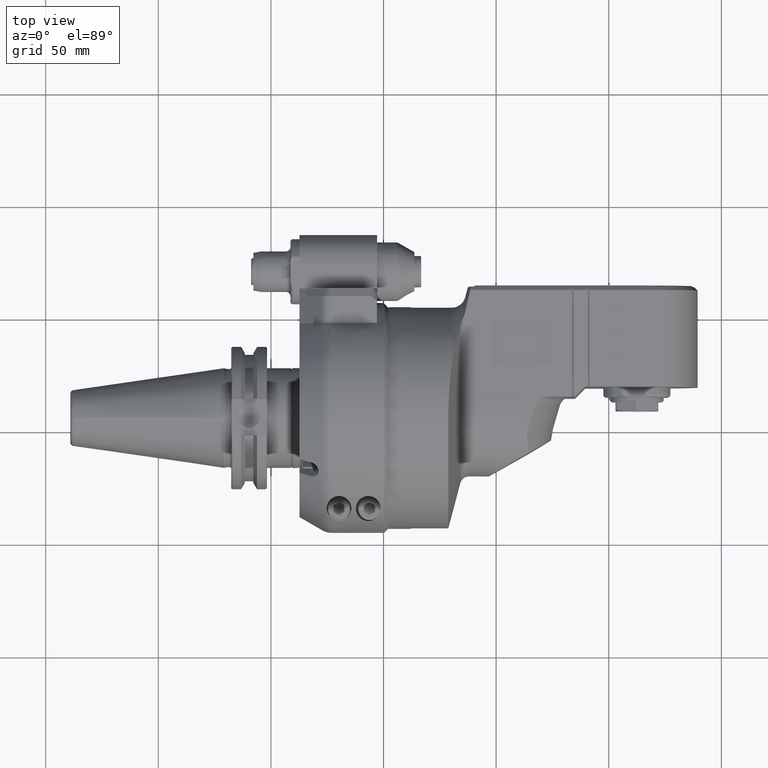
[diagram: clean part render]
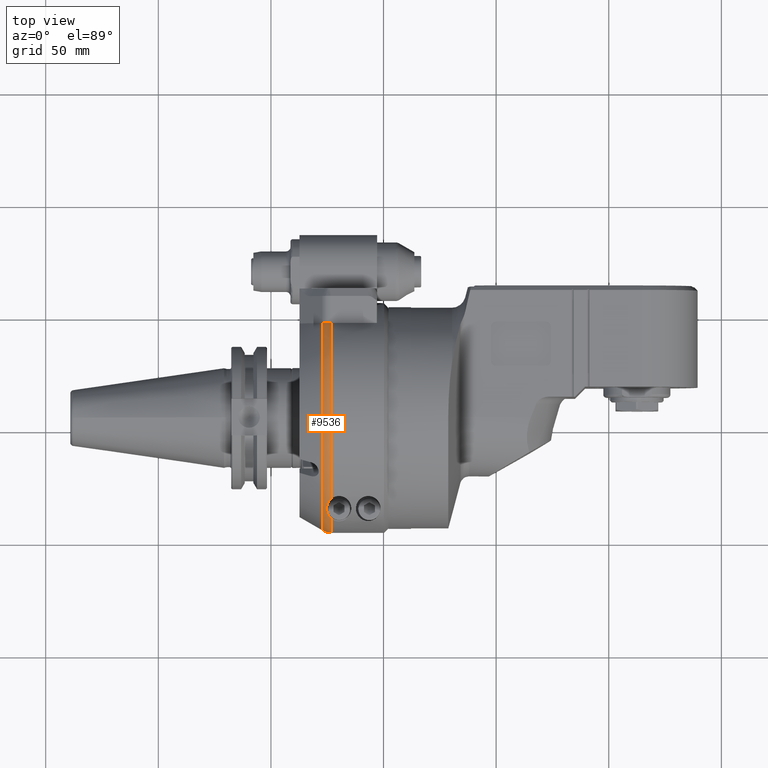
[diagram: same view with one face highlighted and labeled with its STEP entity id]
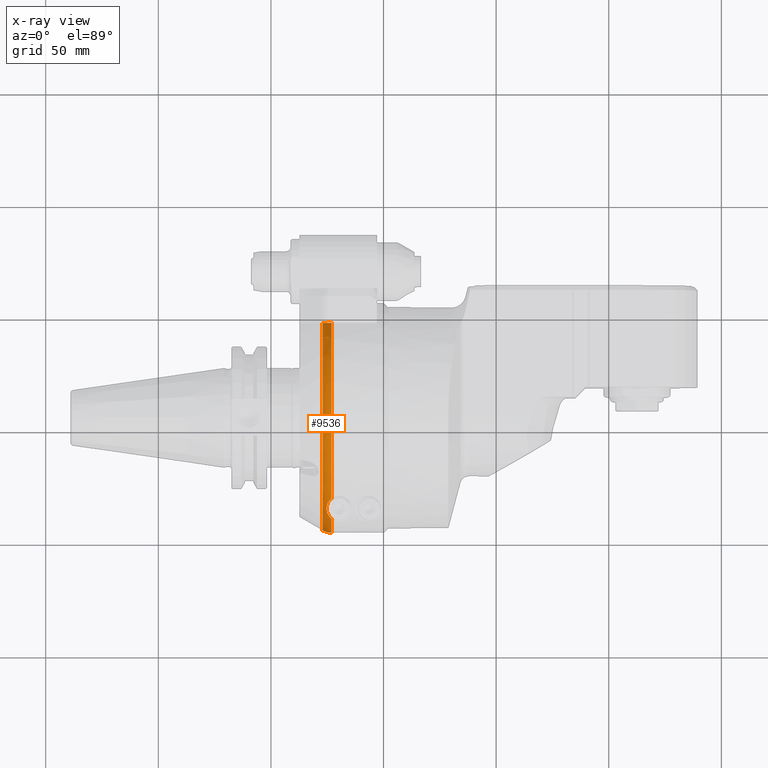
[diagram: x-ray of the same camera — body ghosted, the highlighted face saturated]
A machine part, top view. The second image highlights one B-rep face of the part: STEP entity #9536.
The next image is the same camera in x-ray: the body ghosted, the highlighted face saturated — about 0% of this face is hidden behind the body in this view.
In plain terms, the highlighted toroidal blend (fillet) surface has major radius 43 mm and minor (blend) radius 8 mm.
Its self-contained STEP definition (entity closure, byte-faithful):
#85=B_SPLINE_CURVE_WITH_KNOTS('',3,(#15429,#15430,#15431,#15432,#15433,
#15434,#15435,#15436,#15437,#15438),.UNSPECIFIED.,.F.,.F.,(4,2,2,2,4),(-9.68559804021147,
-9.63577634006454,-9.4843525606202,-9.37005770955715,-9.2557628584941),
 .UNSPECIFIED.);
#101=B_SPLINE_CURVE_WITH_KNOTS('',3,(#15768,#15769,#15770,#15771,#15772,
#15773,#15774,#15775),.UNSPECIFIED.,.F.,.F.,(4,2,2,4),(4.34441023881693,
4.44441523838835,4.59248867498487,4.74056211158139),.UNSPECIFIED.);
#104=B_SPLINE_CURVE_WITH_KNOTS('',3,(#15807,#15808,#15809,#15810,#15811,
#15812,#15813,#15814,#15815,#15816,#15817,#15818,#15819,#15820,#15821,#15822),
 .UNSPECIFIED.,.F.,.F.,(4,3,3,3,3,4),(-9.34472443709622,-9.15576581563647,
-8.53592281537659,-8.19749167718061,-7.9196061650134,-7.85473194545393),
 .UNSPECIFIED.);
#171=TOROIDAL_SURFACE('',#10600,43.,8.);
#711=CIRCLE('',#10554,51.);
#712=CIRCLE('',#10555,51.);
#733=CIRCLE('',#10597,49.92820323028);
#1482=FACE_OUTER_BOUND('',#2124,.T.);
#2124=EDGE_LOOP('',(#7413,#7414,#7415,#7416,#7417,#7418));
#4232=VERTEX_POINT('',#15394);
#4242=VERTEX_POINT('',#15425);
#4247=VERTEX_POINT('',#15449);
#4249=VERTEX_POINT('',#15458);
#4250=VERTEX_POINT('',#15485);
#4292=VERTEX_POINT('',#15756);
#5330=EDGE_CURVE('',#4242,#4232,#85,.T.);
#5336=EDGE_CURVE('',#4247,#4232,#711,.T.);
#5339=EDGE_CURVE('',#4250,#4249,#712,.T.);
#5403=EDGE_CURVE('',#4292,#4250,#101,.T.);
#5406=EDGE_CURVE('',#4242,#4292,#733,.T.);
#5411=EDGE_CURVE('',#4249,#4247,#104,.T.);
#7413=ORIENTED_EDGE('',*,*,#5406,.T.);
#7414=ORIENTED_EDGE('',*,*,#5403,.T.);
#7415=ORIENTED_EDGE('',*,*,#5339,.T.);
#7416=ORIENTED_EDGE('',*,*,#5411,.T.);
#7417=ORIENTED_EDGE('',*,*,#5336,.T.);
#7418=ORIENTED_EDGE('',*,*,#5330,.F.);
#9536=ADVANCED_FACE('',(#1482),#171,.T.);
#10554=AXIS2_PLACEMENT_3D('',#15450,#12469,#12470);
#10555=AXIS2_PLACEMENT_3D('',#15486,#12471,#12472);
#10597=AXIS2_PLACEMENT_3D('',#15781,#12585,#12586);
#10600=AXIS2_PLACEMENT_3D('',#15806,#12591,#12592);
#12469=DIRECTION('center_axis',(-1.,0.,0.));
#12470=DIRECTION('ref_axis',(0.,-0.711205879844998,0.702983781088798));
#12471=DIRECTION('center_axis',(-1.,0.,0.));
#12472=DIRECTION('ref_axis',(0.,-0.999567380468613,0.0294117647058804));
#12585=DIRECTION('center_axis',(1.,0.,0.));
#12586=DIRECTION('ref_axis',(0.,0.836200730225418,0.548423503116412));
#12591=DIRECTION('center_axis',(1.,0.,0.));
#12592=DIRECTION('ref_axis',(0.,-1.,0.));
#15394=CARTESIAN_POINT('',(-37.23205080757,41.75,29.29057015492));
#15425=CARTESIAN_POINT('',(-41.23205080757,41.75,27.38180011986));
#15429=CARTESIAN_POINT('Ctrl Pts',(-41.2320508075675,41.75,27.3818001198576));
#15430=CARTESIAN_POINT('Ctrl Pts',(-41.1084978721799,41.75,27.5118698927609));
#15431=CARTESIAN_POINT('Ctrl Pts',(-40.9796012581369,41.75,27.63883358715));
#15432=CARTESIAN_POINT('Ctrl Pts',(-40.4412749376929,41.75,28.1311886381695));
#15433=CARTESIAN_POINT('Ctrl Pts',(-39.9932266664163,41.75,28.4521983127449));
#15434=CARTESIAN_POINT('Ctrl Pts',(-39.2119237728328,41.75,28.8694287521605));
#15435=CARTESIAN_POINT('Ctrl Pts',(-38.8258618631201,41.75,29.0288082766981));
#15436=CARTESIAN_POINT('Ctrl Pts',(-38.0264941442551,41.75,29.2396724058848));
#15437=CARTESIAN_POINT('Ctrl Pts',(-37.6130336444468,41.75,29.290570154915));
#15438=CARTESIAN_POINT('Ctrl Pts',(-37.23205080757,41.75,29.290570154915));
#15449=CARTESIAN_POINT('',(-37.23205080757,-36.27149987209,35.85217283553));
#15450=CARTESIAN_POINT('Origin',(-37.23205080757,0.,0.));
#15458=CARTESIAN_POINT('',(-37.23205080757,-45.1718026933,23.67505525733));
#15485=CARTESIAN_POINT('',(-37.2320508231036,-50.9779364044793,1.499999980309));
#15486=CARTESIAN_POINT('Origin',(-37.23205080757,0.,0.));
#15756=CARTESIAN_POINT('',(-41.2320587089715,-49.9056612221311,1.50000006858959));
#15768=CARTESIAN_POINT('Ctrl Pts',(-41.2320587100669,-49.9056612240274,
1.5));
#15769=CARTESIAN_POINT('Ctrl Pts',(-40.9199628642827,-50.0859316928166,
1.5));
#15770=CARTESIAN_POINT('Ctrl Pts',(-40.6009646113261,-50.2413262775005,
1.5));
#15771=CARTESIAN_POINT('Ctrl Pts',(-39.8370100654999,-50.5578441661684,
1.5));
#15772=CARTESIAN_POINT('Ctrl Pts',(-39.3203684112507,-50.7191785472564,
1.5));
#15773=CARTESIAN_POINT('Ctrl Pts',(-38.2646778846743,-50.9292248693063,
1.5));
#15774=CARTESIAN_POINT('Ctrl Pts',(-37.7256289314938,-50.9779364038993,
1.5));
#15775=CARTESIAN_POINT('Ctrl Pts',(-37.23205080757,-50.9779364038993,1.5));
#15781=CARTESIAN_POINT('Origin',(-41.23205080757,0.,0.));
#15806=CARTESIAN_POINT('Origin',(-37.23205080757,0.,0.));
#15807=CARTESIAN_POINT('Ctrl Pts',(-37.2320508075728,-45.1718026933004,
23.6750552573282));
#15808=CARTESIAN_POINT('Ctrl Pts',(-37.605952306744,-44.9002459459343,24.1931832058681));
#15809=CARTESIAN_POINT('Ctrl Pts',(-37.9420066961442,-44.5838219388027,
24.7188029255101));
#15810=CARTESIAN_POINT('Ctrl Pts',(-38.2317635357637,-44.2347948006026,
25.2564932996425));
#15811=CARTESIAN_POINT('Ctrl Pts',(-39.1822560162236,-43.089877321618,27.0202848225608));
#15812=CARTESIAN_POINT('Ctrl Pts',(-39.5913735244701,-41.6682943531756,
28.8794189915735));
#15813=CARTESIAN_POINT('Ctrl Pts',(-39.483087636928,-40.2906640836245,30.7375607372471));
#15814=CARTESIAN_POINT('Ctrl Pts',(-39.4239640908752,-39.5384849351274,
31.7520967175745));
#15815=CARTESIAN_POINT('Ctrl Pts',(-39.2001167152261,-38.7666121290624,
32.7926546956217));
#15816=CARTESIAN_POINT('Ctrl Pts',(-38.8239051275728,-38.0796938038262,
33.6844936512158));
#15817=CARTESIAN_POINT('Ctrl Pts',(-38.5149981213334,-37.5156657665634,
34.4167818391969));
#15818=CARTESIAN_POINT('Ctrl Pts',(-38.1276341386836,-37.0238735560994,
35.0318289883245));
#15819=CARTESIAN_POINT('Ctrl Pts',(-37.6160859153088,-36.5775081079164,
35.5266834858286));
#15820=CARTESIAN_POINT('Ctrl Pts',(-37.4966615829653,-36.4733011276267,
35.642210556926));
#15821=CARTESIAN_POINT('Ctrl Pts',(-37.3685659302863,-36.3706479171661,
35.7518651548586));
#15822=CARTESIAN_POINT('Ctrl Pts',(-37.2320508075658,-36.2714998720946,
35.8521728355289));